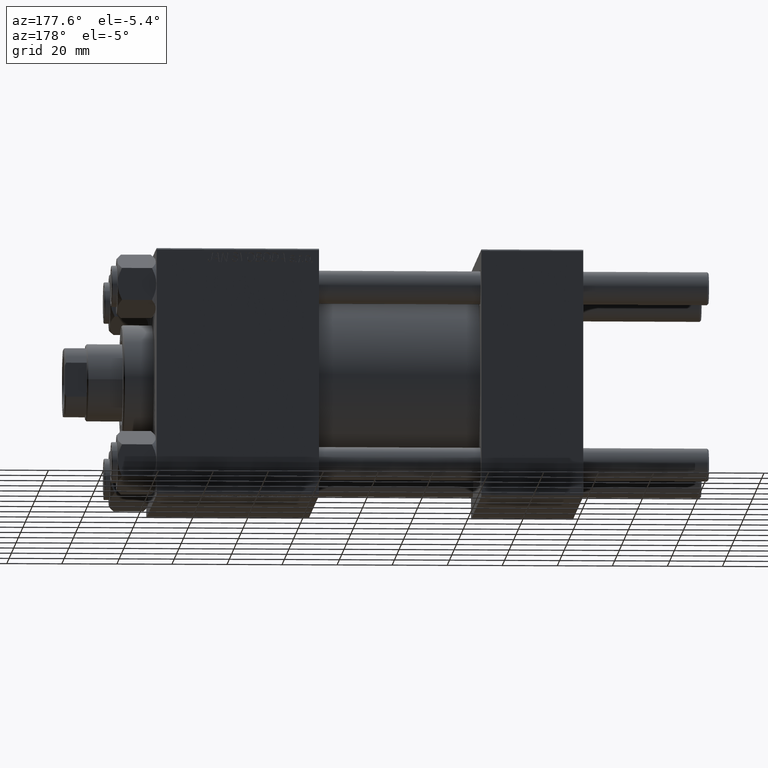
[diagram: clean part render]
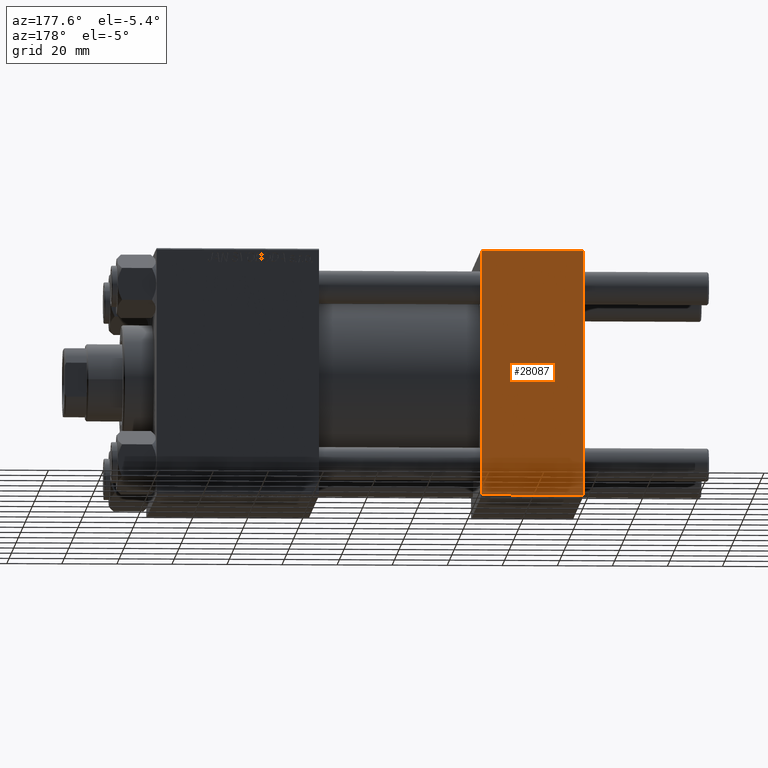
[diagram: same view with one face highlighted and labeled with its STEP entity id]
A machine part, auxiliary view. The second image highlights one B-rep face of the part: STEP entity #28087.
In plain terms, the highlighted planar face has unit normal (0, 1, 0).
Its self-contained STEP definition (entity closure, byte-faithful):
#16 = VERTEX_POINT ( 'NONE', #39199 ) ;
#960 = CARTESIAN_POINT ( 'NONE',  ( 37.00000000000000000, 44.99999999999998579, 44.50000000000001421 ) ) ;
#1090 = CARTESIAN_POINT ( 'NONE',  ( 37.00000000000000000, 44.99999999999998579, 44.50000000000001421 ) ) ;
#1731 = VERTEX_POINT ( 'NONE', #10181 ) ;
#4873 = DIRECTION ( 'NONE',  ( 1.000000000000000000, 0.000000000000000000, 0.000000000000000000 ) ) ;
#5755 = EDGE_CURVE ( 'NONE', #9344, #16, #11245, .T. ) ;
#5888 = VECTOR ( 'NONE', #9530, 1000.000000000000000 ) ;
#6413 = FACE_OUTER_BOUND ( 'NONE', #36404, .T. ) ;
#9344 = VERTEX_POINT ( 'NONE', #28428 ) ;
#9530 = DIRECTION ( 'NONE',  ( 0.000000000000000000, 0.000000000000000000, -1.000000000000000000 ) ) ;
#10181 = CARTESIAN_POINT ( 'NONE',  ( 37.00000000000000000, 44.99999999999998579, -44.49999999999995737 ) ) ;
#11245 = LINE ( 'NONE', #18294, #13429 ) ;
#12813 = CARTESIAN_POINT ( 'NONE',  ( 37.00000000000000000, 44.99999999999998579, 45.00000000000001421 ) ) ;
#13223 = AXIS2_PLACEMENT_3D ( 'NONE', #22732, #49204, #30303 ) ;
#13429 = VECTOR ( 'NONE', #29629, 1000.000000000000000 ) ;
#13676 = VERTEX_POINT ( 'NONE', #960 ) ;
#15075 = EDGE_CURVE ( 'NONE', #9344, #13676, #44134, .T. ) ;
#18294 = CARTESIAN_POINT ( 'NONE',  ( 0.000000000000000000, 44.99999999999998579, 45.00000000000001421 ) ) ;
#18440 = ORIENTED_EDGE ( 'NONE', *, *, #28227, .T. ) ;
#18587 = ORIENTED_EDGE ( 'NONE', *, *, #5755, .F. ) ;
#22732 = CARTESIAN_POINT ( 'NONE',  ( 37.00000000000000000, 44.99999999999998579, 45.00000000000001421 ) ) ;
#24464 = LINE ( 'NONE', #35555, #36501 ) ;
#24629 = LINE ( 'NONE', #12813, #5888 ) ;
#25190 = EDGE_CURVE ( 'NONE', #13676, #1731, #24629, .T. ) ;
#27072 = ORIENTED_EDGE ( 'NONE', *, *, #25190, .T. ) ;
#28009 = DIRECTION ( 'NONE',  ( -1.000000000000000000, 0.000000000000000000, 0.000000000000000000 ) ) ;
#28087 = ADVANCED_FACE ( 'NONE', ( #6413 ), #33840, .T. ) ;
#28227 = EDGE_CURVE ( 'NONE', #1731, #16, #24464, .T. ) ;
#28428 = CARTESIAN_POINT ( 'NONE',  ( 0.000000000000000000, 44.99999999999998579, 44.50000000000001421 ) ) ;
#29629 = DIRECTION ( 'NONE',  ( 0.000000000000000000, 0.000000000000000000, -1.000000000000000000 ) ) ;
#30303 = DIRECTION ( 'NONE',  ( 0.000000000000000000, -0.000000000000000000, 1.000000000000000000 ) ) ;
#33840 = PLANE ( 'NONE',  #13223 ) ;
#35555 = CARTESIAN_POINT ( 'NONE',  ( 37.00000000000000000, 44.99999999999998579, -44.49999999999998579 ) ) ;
#36404 = EDGE_LOOP ( 'NONE', ( #27072, #18440, #18587, #39535 ) ) ;
#36501 = VECTOR ( 'NONE', #28009, 1000.000000000000000 ) ;
#37827 = VECTOR ( 'NONE', #4873, 1000.000000000000000 ) ;
#39199 = CARTESIAN_POINT ( 'NONE',  ( 0.000000000000000000, 44.99999999999998579, -44.49999999999995737 ) ) ;
#39535 = ORIENTED_EDGE ( 'NONE', *, *, #15075, .T. ) ;
#44134 = LINE ( 'NONE', #1090, #37827 ) ;
#49204 = DIRECTION ( 'NONE',  ( -0.000000000000000000, 1.000000000000000000, 0.000000000000000000 ) ) ;